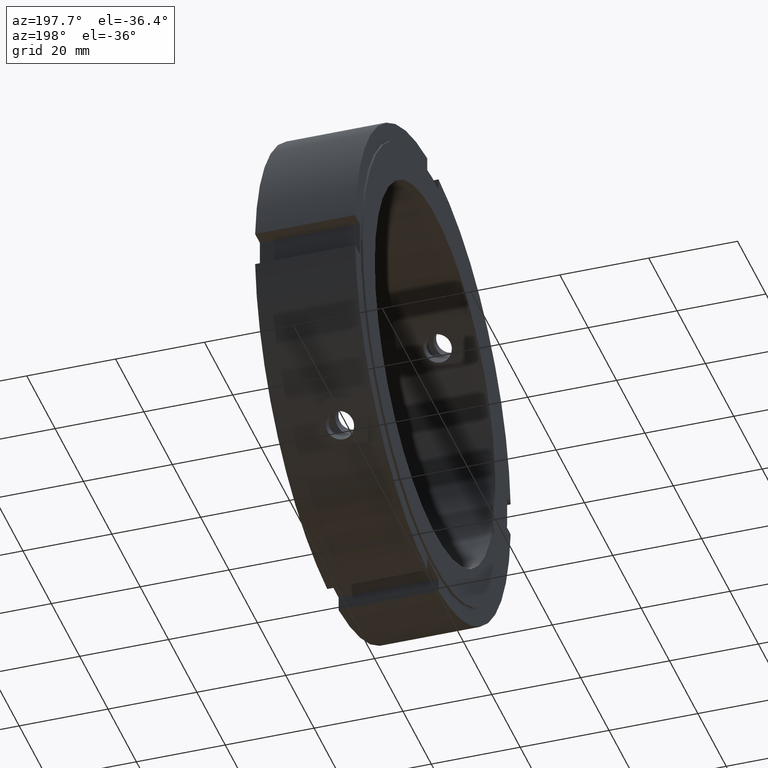
[diagram: clean part render]
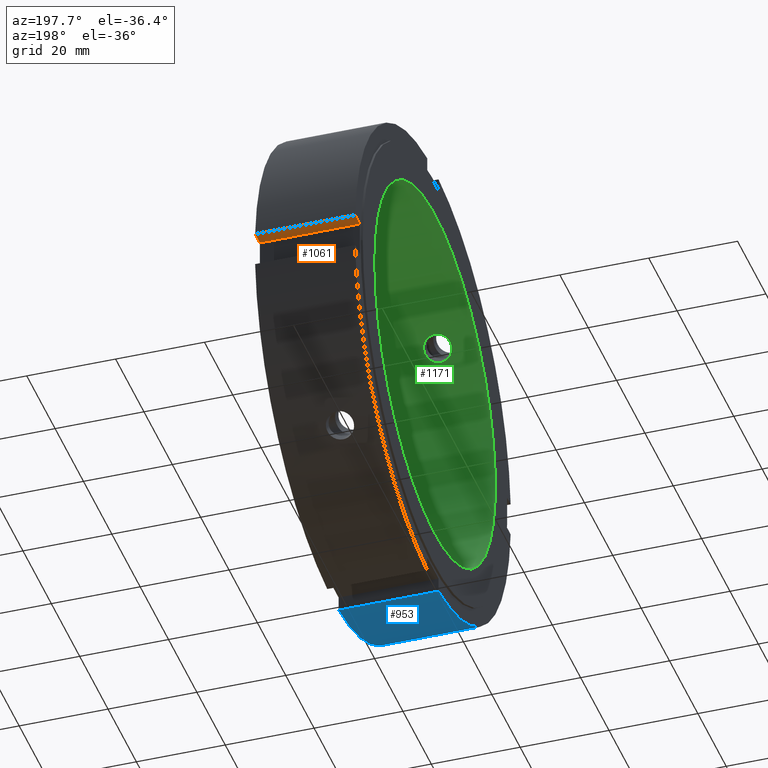
[diagram: same view with three faces highlighted in distinct colors, each labeled with its STEP entity id]
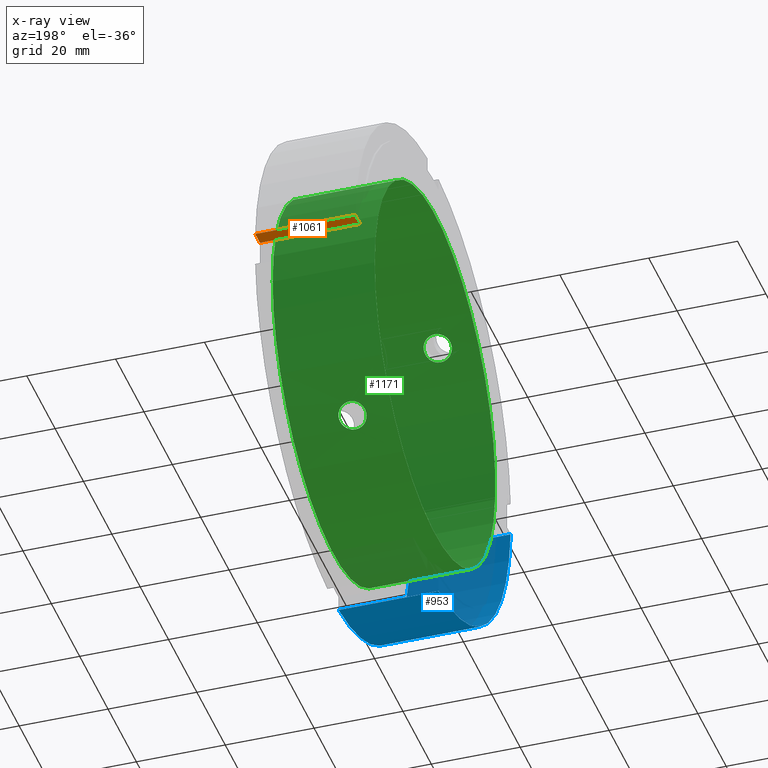
[diagram: x-ray of the same camera — body ghosted, the three highlighted faces saturated]
A machine part, auxiliary view with three faces highlighted in distinct colors.
The next image is the same camera in x-ray (body ghosted, the three faces saturated) — at least one of them is partly hidden behind the body in this view.
Their STEP definitions:

[orange] entity #1061 — the highlighted planar face has unit normal (0, 0, 1).
#840=CARTESIAN_POINT('',(22.999999999999989,54.854352607609911,3.999999999999997));
#841=VERTEX_POINT('',#840);
#849=CARTESIAN_POINT('',(0.499999999999985,54.854352607609911,3.999999999999997));
#850=VERTEX_POINT('',#849);
#851=CARTESIAN_POINT('',(22.999999999999989,54.854352607609911,3.999999999999997));
#852=DIRECTION('',(-1.0,0.0,0.0));
#853=VECTOR('',#852,22.500000000000004);
#854=LINE('',#851,#853);
#855=EDGE_CURVE('',#841,#850,#854,.T.);
#971=CARTESIAN_POINT('',(22.999999999999989,51.499999999999993,3.999999999999997));
#972=VERTEX_POINT('',#971);
#979=CARTESIAN_POINT('',(22.999999999999989,51.499999999999993,3.999999999999997));
#980=DIRECTION('',(0.0,1.0,0.0));
#981=VECTOR('',#980,3.354352607609918);
#982=LINE('',#979,#981);
#983=EDGE_CURVE('',#972,#841,#982,.T.);
#1038=CARTESIAN_POINT('',(22.999999999999989,55.0,3.999999999999997));
#1039=DIRECTION('',(0.0,0.0,1.0));
#1040=DIRECTION('',(1.0,0.0,0.0));
#1041=AXIS2_PLACEMENT_3D('',#1038,#1039,#1040);
#1042=PLANE('',#1041);
#1043=CARTESIAN_POINT('',(0.499999999999985,51.499999999999993,3.999999999999997));
#1044=VERTEX_POINT('',#1043);
#1045=CARTESIAN_POINT('',(0.499999999999985,54.854352607609911,3.999999999999997));
#1046=DIRECTION('',(0.0,-1.0,0.0));
#1047=VECTOR('',#1046,3.354352607609918);
#1048=LINE('',#1045,#1047);
#1049=EDGE_CURVE('',#850,#1044,#1048,.T.);
#1050=ORIENTED_EDGE('',*,*,#1049,.F.);
#1051=ORIENTED_EDGE('',*,*,#855,.F.);
#1052=ORIENTED_EDGE('',*,*,#983,.F.);
#1053=CARTESIAN_POINT('',(22.999999999999989,51.499999999999993,3.999999999999997));
#1054=DIRECTION('',(-1.0,0.0,0.0));
#1055=VECTOR('',#1054,22.500000000000004);
#1056=LINE('',#1053,#1055);
#1057=EDGE_CURVE('',#972,#1044,#1056,.T.);
#1058=ORIENTED_EDGE('',*,*,#1057,.T.);
#1059=EDGE_LOOP('',(#1050,#1051,#1052,#1058));
#1060=FACE_OUTER_BOUND('',#1059,.T.);
#1061=ADVANCED_FACE('',(#1060),#1042,.F.);

[blue] entity #953 — the highlighted cylindrical surface (partial cylindrical patch) has radius 55 mm, axis along (1, 0, 0).
#535=CARTESIAN_POINT('',(0.499999999999985,-4.000000000000007,-54.854352607609911));
#536=VERTEX_POINT('',#535);
#551=CARTESIAN_POINT('',(22.999999999999989,-4.000000000000007,-54.854352607609911));
#552=VERTEX_POINT('',#551);
#559=CARTESIAN_POINT('',(0.499999999999986,-4.000000000000007,-54.854352607609911));
#560=DIRECTION('',(1.0,0.0,0.0));
#561=VECTOR('',#560,22.500000000000004);
#562=LINE('',#559,#561);
#563=EDGE_CURVE('',#536,#552,#562,.T.);
#675=CARTESIAN_POINT('',(0.499999999999985,-54.854352607609911,-3.999999999999991));
#676=VERTEX_POINT('',#675);
#685=CARTESIAN_POINT('',(22.999999999999989,-54.854352607609911,-3.999999999999991));
#686=VERTEX_POINT('',#685);
#687=CARTESIAN_POINT('',(22.999999999999989,-54.854352607609911,-3.999999999999991));
#688=DIRECTION('',(-1.0,0.0,0.0));
#689=VECTOR('',#688,22.500000000000004);
#690=LINE('',#687,#689);
#691=EDGE_CURVE('',#686,#676,#690,.T.);
#930=CARTESIAN_POINT('',(11.749999999999988,0.0,0.0));
#931=DIRECTION('',(1.0,0.0,0.0));
#932=DIRECTION('',(0.0,1.0,0.0));
#933=AXIS2_PLACEMENT_3D('',#930,#931,#932);
#934=CYLINDRICAL_SURFACE('',#933,55.0);
#935=ORIENTED_EDGE('',*,*,#563,.T.);
#936=CARTESIAN_POINT('',(22.999999999999989,0.0,0.0));
#937=DIRECTION('',(1.0,0.0,0.0));
#938=DIRECTION('',(0.0,1.0,0.0));
#939=AXIS2_PLACEMENT_3D('',#936,#937,#938);
#940=CIRCLE('',#939,55.0);
#941=EDGE_CURVE('',#686,#552,#940,.T.);
#942=ORIENTED_EDGE('',*,*,#941,.F.);
#943=ORIENTED_EDGE('',*,*,#691,.T.);
#944=CARTESIAN_POINT('',(0.499999999999985,0.0,0.0));
#945=DIRECTION('',(1.0,0.0,0.0));
#946=DIRECTION('',(0.0,1.0,0.0));
#947=AXIS2_PLACEMENT_3D('',#944,#945,#946);
#948=CIRCLE('',#947,55.0);
#949=EDGE_CURVE('',#676,#536,#948,.T.);
#950=ORIENTED_EDGE('',*,*,#949,.T.);
#951=EDGE_LOOP('',(#935,#942,#943,#950));
#952=FACE_OUTER_BOUND('',#951,.T.);
#953=ADVANCED_FACE('',(#952),#934,.T.);

[green] entity #1171 — the highlighted cylindrical surface (bore or boss wall) has radius 42.5 mm, axis along (1, 0, 0).
#256=CARTESIAN_POINT('',(8.999999999999988,-32.164017942801834,27.779955899445234));
#257=VERTEX_POINT('',#256);
#258=CARTESIAN_POINT('',(8.999999999999988,-32.164017942801827,27.779955899445238));
#259=CARTESIAN_POINT('',(9.389391476768958,-32.164017942801827,27.779955899445238));
#260=CARTESIAN_POINT('',(9.804643113042154,-32.113155681414824,27.839187759313457));
#261=CARTESIAN_POINT('',(10.568378037510836,-31.904531695235985,28.078034122191031));
#262=CARTESIAN_POINT('',(10.916873089192016,-31.746556744733361,28.257424664816753));
#263=CARTESIAN_POINT('',(11.46718869021241,-31.377521934150874,28.666653640782805));
#264=CARTESIAN_POINT('',(11.705742321619594,-31.141793991572364,28.923772292656558));
#265=CARTESIAN_POINT('',(12.022151798921852,-30.616834301302021,29.478897435555158));
#266=CARTESIAN_POINT('',(12.099999999999989,-30.327379290059753,29.776697110796782));
#267=CARTESIAN_POINT('',(12.099999999999989,-29.776697110796778,30.32737929005976));
#268=CARTESIAN_POINT('',(12.022151798921852,-29.478897435555144,30.616834301302024));
#269=CARTESIAN_POINT('',(11.705742321619594,-28.923772292656555,31.141793991572367));
#270=CARTESIAN_POINT('',(11.46718869021241,-28.666653640782805,31.377521934150874));
#271=CARTESIAN_POINT('',(10.916873089192016,-28.25742466481675,31.746556744733368));
#272=CARTESIAN_POINT('',(10.568378037510836,-28.078034122191031,31.904531695235981));
#273=CARTESIAN_POINT('',(9.804643113042157,-27.839187759313457,32.113155681414824));
#274=CARTESIAN_POINT('',(9.38939147676896,-27.779955899445227,32.164017942801834));
#275=CARTESIAN_POINT('',(8.610608523231015,-27.779955899445227,32.164017942801834));
#276=CARTESIAN_POINT('',(8.195356886957821,-27.839187759313457,32.113155681414824));
#277=CARTESIAN_POINT('',(7.43162196248914,-28.078034122191031,31.904531695235985));
#278=CARTESIAN_POINT('',(7.083126910807962,-28.25742466481675,31.746556744733361));
#279=CARTESIAN_POINT('',(6.532811309787566,-28.666653640782805,31.377521934150874));
#280=CARTESIAN_POINT('',(6.294257678380381,-28.923772292656547,31.141793991572367));
#281=CARTESIAN_POINT('',(5.977848201078126,-29.47889743555514,30.616834301302024));
#282=CARTESIAN_POINT('',(5.899999999999988,-29.776697110796782,30.32737929005976));
#283=CARTESIAN_POINT('',(5.899999999999988,-30.327379290059753,29.776697110796782));
#284=CARTESIAN_POINT('',(5.977848201078126,-30.616834301302017,29.478897435555158));
#285=CARTESIAN_POINT('',(6.294257678380383,-31.141793991572357,28.923772292656558));
#286=CARTESIAN_POINT('',(6.532811309787567,-31.377521934150874,28.666653640782805));
#287=CARTESIAN_POINT('',(7.083126910807961,-31.746556744733361,28.257424664816753));
#288=CARTESIAN_POINT('',(7.431621962489139,-31.904531695235981,28.078034122191035));
#289=CARTESIAN_POINT('',(8.19535688695782,-32.113155681414817,27.839187759313461));
#290=CARTESIAN_POINT('',(8.610608523231019,-32.16401794280182,27.779955899445238));
#291=CARTESIAN_POINT('',(8.999999999999989,-32.16401794280182,27.779955899445238));
#292=B_SPLINE_CURVE_WITH_KNOTS('',3,(#258,#259,#260,#261,#262,#263,#264,#265,#266,#267,#268,#269,#270,#271,#272,#273,#274,#275,#276,#277,#278,#279,#280,#281,#282,#283,#284,#285,#286,#287,#288,#289,#290,#291),.UNSPECIFIED.,.T.,.U.,(4,2,2,2,2,2,2,2,2,2,2,2,2,2,2,2,4),(0.0,0.116817443030692,0.233634886061384,0.350452217032014,0.467269548002644,0.584086878973274,0.700904209943904,0.817721652974595,0.934539096005287,1.051356539035979,1.168173982066671,1.284991313037301,1.401808644007931,1.51862597497856,1.63544330594919,1.752260748979882,1.869078192010574),.UNSPECIFIED.);
#293=EDGE_CURVE('',#257,#257,#292,.T.);
#486=CARTESIAN_POINT('',(8.999999999999988,27.779955899445223,-32.164017942801834));
#487=VERTEX_POINT('',#486);
#488=CARTESIAN_POINT('',(8.999999999999988,27.779955899445227,-32.164017942801834));
#489=CARTESIAN_POINT('',(8.610608523231015,27.779955899445227,-32.164017942801834));
#490=CARTESIAN_POINT('',(8.195356886957818,27.839187759313447,-32.113155681414824));
#491=CARTESIAN_POINT('',(7.431621962489139,28.078034122191021,-31.904531695235981));
#492=CARTESIAN_POINT('',(7.083126910807962,28.25742466481675,-31.746556744733368));
#493=CARTESIAN_POINT('',(6.532811309787565,28.666653640782801,-31.377521934150874));
#494=CARTESIAN_POINT('',(6.294257678380381,28.923772292656547,-31.141793991572367));
#495=CARTESIAN_POINT('',(5.977848201078126,29.47889743555514,-30.616834301302024));
#496=CARTESIAN_POINT('',(5.899999999999988,29.776697110796778,-30.327379290059756));
#497=CARTESIAN_POINT('',(5.899999999999988,30.327379290059753,-29.776697110796782));
#498=CARTESIAN_POINT('',(5.977848201078126,30.616834301302017,-29.478897435555158));
#499=CARTESIAN_POINT('',(6.294257678380383,31.141793991572357,-28.923772292656558));
#500=CARTESIAN_POINT('',(6.532811309787567,31.377521934150874,-28.666653640782805));
#501=CARTESIAN_POINT('',(7.083126910807961,31.746556744733361,-28.257424664816753));
#502=CARTESIAN_POINT('',(7.431621962489141,31.904531695235985,-28.078034122191031));
#503=CARTESIAN_POINT('',(8.195356886957821,32.113155681414824,-27.839187759313457));
#504=CARTESIAN_POINT('',(8.610608523231015,32.164017942801827,-27.779955899445234));
#505=CARTESIAN_POINT('',(9.38939147676896,32.164017942801827,-27.779955899445234));
#506=CARTESIAN_POINT('',(9.804643113042154,32.113155681414824,-27.839187759313457));
#507=CARTESIAN_POINT('',(10.568378037510836,31.904531695235985,-28.078034122191031));
#508=CARTESIAN_POINT('',(10.916873089192016,31.746556744733361,-28.257424664816753));
#509=CARTESIAN_POINT('',(11.46718869021241,31.377521934150874,-28.666653640782805));
#510=CARTESIAN_POINT('',(11.705742321619594,31.141793991572364,-28.923772292656558));
#511=CARTESIAN_POINT('',(12.022151798921852,30.616834301302021,-29.478897435555158));
#512=CARTESIAN_POINT('',(12.099999999999989,30.327379290059753,-29.776697110796782));
#513=CARTESIAN_POINT('',(12.099999999999989,29.776697110796782,-30.32737929005976));
#514=CARTESIAN_POINT('',(12.022151798921852,29.47889743555514,-30.616834301302024));
#515=CARTESIAN_POINT('',(11.705742321619594,28.923772292656547,-31.141793991572367));
#516=CARTESIAN_POINT('',(11.46718869021241,28.666653640782805,-31.377521934150874));
#517=CARTESIAN_POINT('',(10.916873089192014,28.25742466481675,-31.746556744733361));
#518=CARTESIAN_POINT('',(10.568378037510833,28.078034122191028,-31.904531695235985));
#519=CARTESIAN_POINT('',(9.804643113042154,27.839187759313454,-32.113155681414824));
#520=CARTESIAN_POINT('',(9.389391476768962,27.779955899445227,-32.164017942801834));
#521=CARTESIAN_POINT('',(8.999999999999989,27.779955899445227,-32.164017942801834));
#522=B_SPLINE_CURVE_WITH_KNOTS('',3,(#488,#489,#490,#491,#492,#493,#494,#495,#496,#497,#498,#499,#500,#501,#502,#503,#504,#505,#506,#507,#508,#509,#510,#511,#512,#513,#514,#515,#516,#517,#518,#519,#520,#521),.UNSPECIFIED.,.T.,.U.,(4,2,2,2,2,2,2,2,2,2,2,2,2,2,2,2,4),(0.0,0.116817443030692,0.233634886061384,0.350452217032014,0.467269548002644,0.584086878973273,0.700904209943903,0.817721652974595,0.934539096005287,1.051356539035979,1.168173982066671,1.284991313037301,1.401808644007931,1.518625974978561,1.635443305949191,1.752260748979882,1.869078192010574),.UNSPECIFIED.);
#523=EDGE_CURVE('',#487,#487,#522,.T.);
#1002=CARTESIAN_POINT('',(22.999999999999989,42.5,0.0));
#1003=VERTEX_POINT('',#1002);
#1004=CARTESIAN_POINT('',(22.999999999999989,0.0,0.0));
#1005=DIRECTION('',(1.0,0.0,0.0));
#1006=DIRECTION('',(0.0,1.0,0.0));
#1007=AXIS2_PLACEMENT_3D('',#1004,#1005,#1006);
#1008=CIRCLE('',#1007,42.5);
#1009=EDGE_CURVE('',#1003,#1003,#1008,.T.);
#1095=CARTESIAN_POINT('',(-1.211822E-014,42.5,0.0));
#1096=VERTEX_POINT('',#1095);
#1097=CARTESIAN_POINT('',(-1.211704E-014,0.0,0.0));
#1098=DIRECTION('',(1.0,0.0,0.0));
#1099=DIRECTION('',(0.0,1.0,0.0));
#1100=AXIS2_PLACEMENT_3D('',#1097,#1098,#1099);
#1101=CIRCLE('',#1100,42.5);
#1102=EDGE_CURVE('',#1096,#1096,#1101,.T.);
#1154=CARTESIAN_POINT('',(11.499999999999988,0.0,0.0));
#1155=DIRECTION('',(1.0,0.0,0.0));
#1156=DIRECTION('',(0.0,1.0,0.0));
#1157=AXIS2_PLACEMENT_3D('',#1154,#1155,#1156);
#1158=CYLINDRICAL_SURFACE('',#1157,42.5);
#1159=ORIENTED_EDGE('',*,*,#1102,.F.);
#1160=EDGE_LOOP('',(#1159));
#1161=FACE_OUTER_BOUND('',#1160,.T.);
#1162=ORIENTED_EDGE('',*,*,#293,.T.);
#1163=EDGE_LOOP('',(#1162));
#1164=FACE_BOUND('',#1163,.T.);
#1165=ORIENTED_EDGE('',*,*,#523,.T.);
#1166=EDGE_LOOP('',(#1165));
#1167=FACE_BOUND('',#1166,.T.);
#1168=ORIENTED_EDGE('',*,*,#1009,.T.);
#1169=EDGE_LOOP('',(#1168));
#1170=FACE_BOUND('',#1169,.T.);
#1171=ADVANCED_FACE('',(#1161,#1164,#1167,#1170),#1158,.F.);